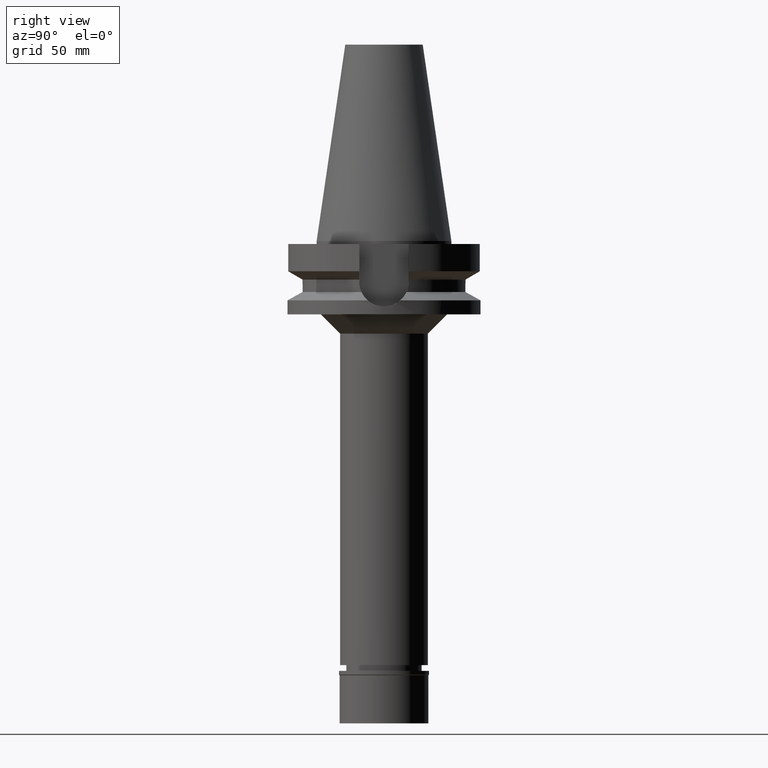
[diagram: clean part render]
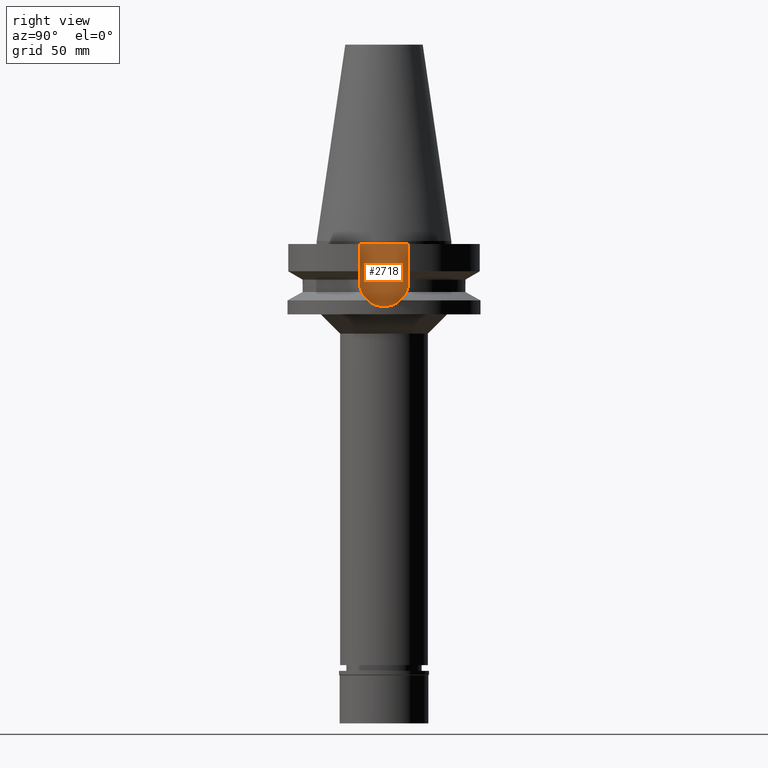
[diagram: same view with one face highlighted and labeled with its STEP entity id]
A machine part, right view. The second image highlights one B-rep face of the part: STEP entity #2718.
In plain terms, the highlighted planar face has unit normal (1, 0, 0).
Its self-contained STEP definition (entity closure, byte-faithful):
#88 = LINE ( 'NONE', #121, #2961 ) ;
#121 = CARTESIAN_POINT ( 'NONE',  ( 35.39999999999999858, -12.84999999999999964, -21.14999999999999858 ) ) ;
#168 = EDGE_CURVE ( 'NONE', #2049, #2706, #88, .T. ) ;
#206 = AXIS2_PLACEMENT_3D ( 'NONE', #521, #2543, #1566 ) ;
#236 = EDGE_LOOP ( 'NONE', ( #324, #2475, #1661, #807 ) ) ;
#239 = VERTEX_POINT ( 'NONE', #779 ) ;
#324 = ORIENTED_EDGE ( 'NONE', *, *, #168, .F. ) ;
#521 = CARTESIAN_POINT ( 'NONE',  ( 35.39999999999999858, 0.0000000000000000000, -21.14999999999999858 ) ) ;
#528 = DIRECTION ( 'NONE',  ( 0.0000000000000000000, 1.000000000000000000, 0.0000000000000000000 ) ) ;
#597 = VECTOR ( 'NONE', #840, 1000.000000000000000 ) ;
#665 = EDGE_CURVE ( 'NONE', #239, #2049, #2148, .T. ) ;
#779 = CARTESIAN_POINT ( 'NONE',  ( 35.39999999999999858, 12.84999999999999964, -21.14999999999999858 ) ) ;
#807 = ORIENTED_EDGE ( 'NONE', *, *, #2278, .T. ) ;
#840 = DIRECTION ( 'NONE',  ( 0.0000000000000000000, -1.000000000000000000, 0.0000000000000000000 ) ) ;
#869 = CARTESIAN_POINT ( 'NONE',  ( 35.39999999999999858, 12.84999999999999964, -1.500000000000000000 ) ) ;
#1022 = DIRECTION ( 'NONE',  ( 0.0000000000000000000, 0.0000000000000000000, 1.000000000000000000 ) ) ;
#1249 = CARTESIAN_POINT ( 'NONE',  ( 35.39999999999999858, -12.84999999999999964, -1.500000000000000000 ) ) ;
#1262 = CARTESIAN_POINT ( 'NONE',  ( 35.39999999999999858, 0.0000000000000000000, 0.0000000000000000000 ) ) ;
#1299 = DIRECTION ( 'NONE',  ( 1.000000000000000000, 0.0000000000000000000, 0.0000000000000000000 ) ) ;
#1425 = CARTESIAN_POINT ( 'NONE',  ( 35.39999999999999858, 12.84999999999999964, -1.500000000000000000 ) ) ;
#1434 = DIRECTION ( 'NONE',  ( 0.0000000000000000000, 0.0000000000000000000, -1.000000000000000000 ) ) ;
#1566 = DIRECTION ( 'NONE',  ( 0.0000000000000000000, 1.000000000000000000, 0.0000000000000000000 ) ) ;
#1575 = LINE ( 'NONE', #869, #597 ) ;
#1608 = VERTEX_POINT ( 'NONE', #1425 ) ;
#1661 = ORIENTED_EDGE ( 'NONE', *, *, #2464, .F. ) ;
#2049 = VERTEX_POINT ( 'NONE', #2458 ) ;
#2137 = CARTESIAN_POINT ( 'NONE',  ( 35.39999999999999858, 12.84999999999999964, -1.500000000000000000 ) ) ;
#2148 = CIRCLE ( 'NONE', #206, 12.84999999999999964 ) ;
#2264 = FACE_OUTER_BOUND ( 'NONE', #236, .T. ) ;
#2278 = EDGE_CURVE ( 'NONE', #1608, #2706, #1575, .T. ) ;
#2397 = LINE ( 'NONE', #2137, #2669 ) ;
#2458 = CARTESIAN_POINT ( 'NONE',  ( 35.39999999999999858, -12.84999999999999964, -21.14999999999999858 ) ) ;
#2464 = EDGE_CURVE ( 'NONE', #1608, #239, #2397, .T. ) ;
#2475 = ORIENTED_EDGE ( 'NONE', *, *, #665, .F. ) ;
#2543 = DIRECTION ( 'NONE',  ( -1.000000000000000000, 0.0000000000000000000, 0.0000000000000000000 ) ) ;
#2669 = VECTOR ( 'NONE', #1434, 1000.000000000000000 ) ;
#2706 = VERTEX_POINT ( 'NONE', #1249 ) ;
#2718 = ADVANCED_FACE ( 'NONE', ( #2264 ), #2772, .T. ) ;
#2772 = PLANE ( 'NONE',  #3064 ) ;
#2961 = VECTOR ( 'NONE', #1022, 1000.000000000000000 ) ;
#3064 = AXIS2_PLACEMENT_3D ( 'NONE', #1262, #1299, #528 ) ;